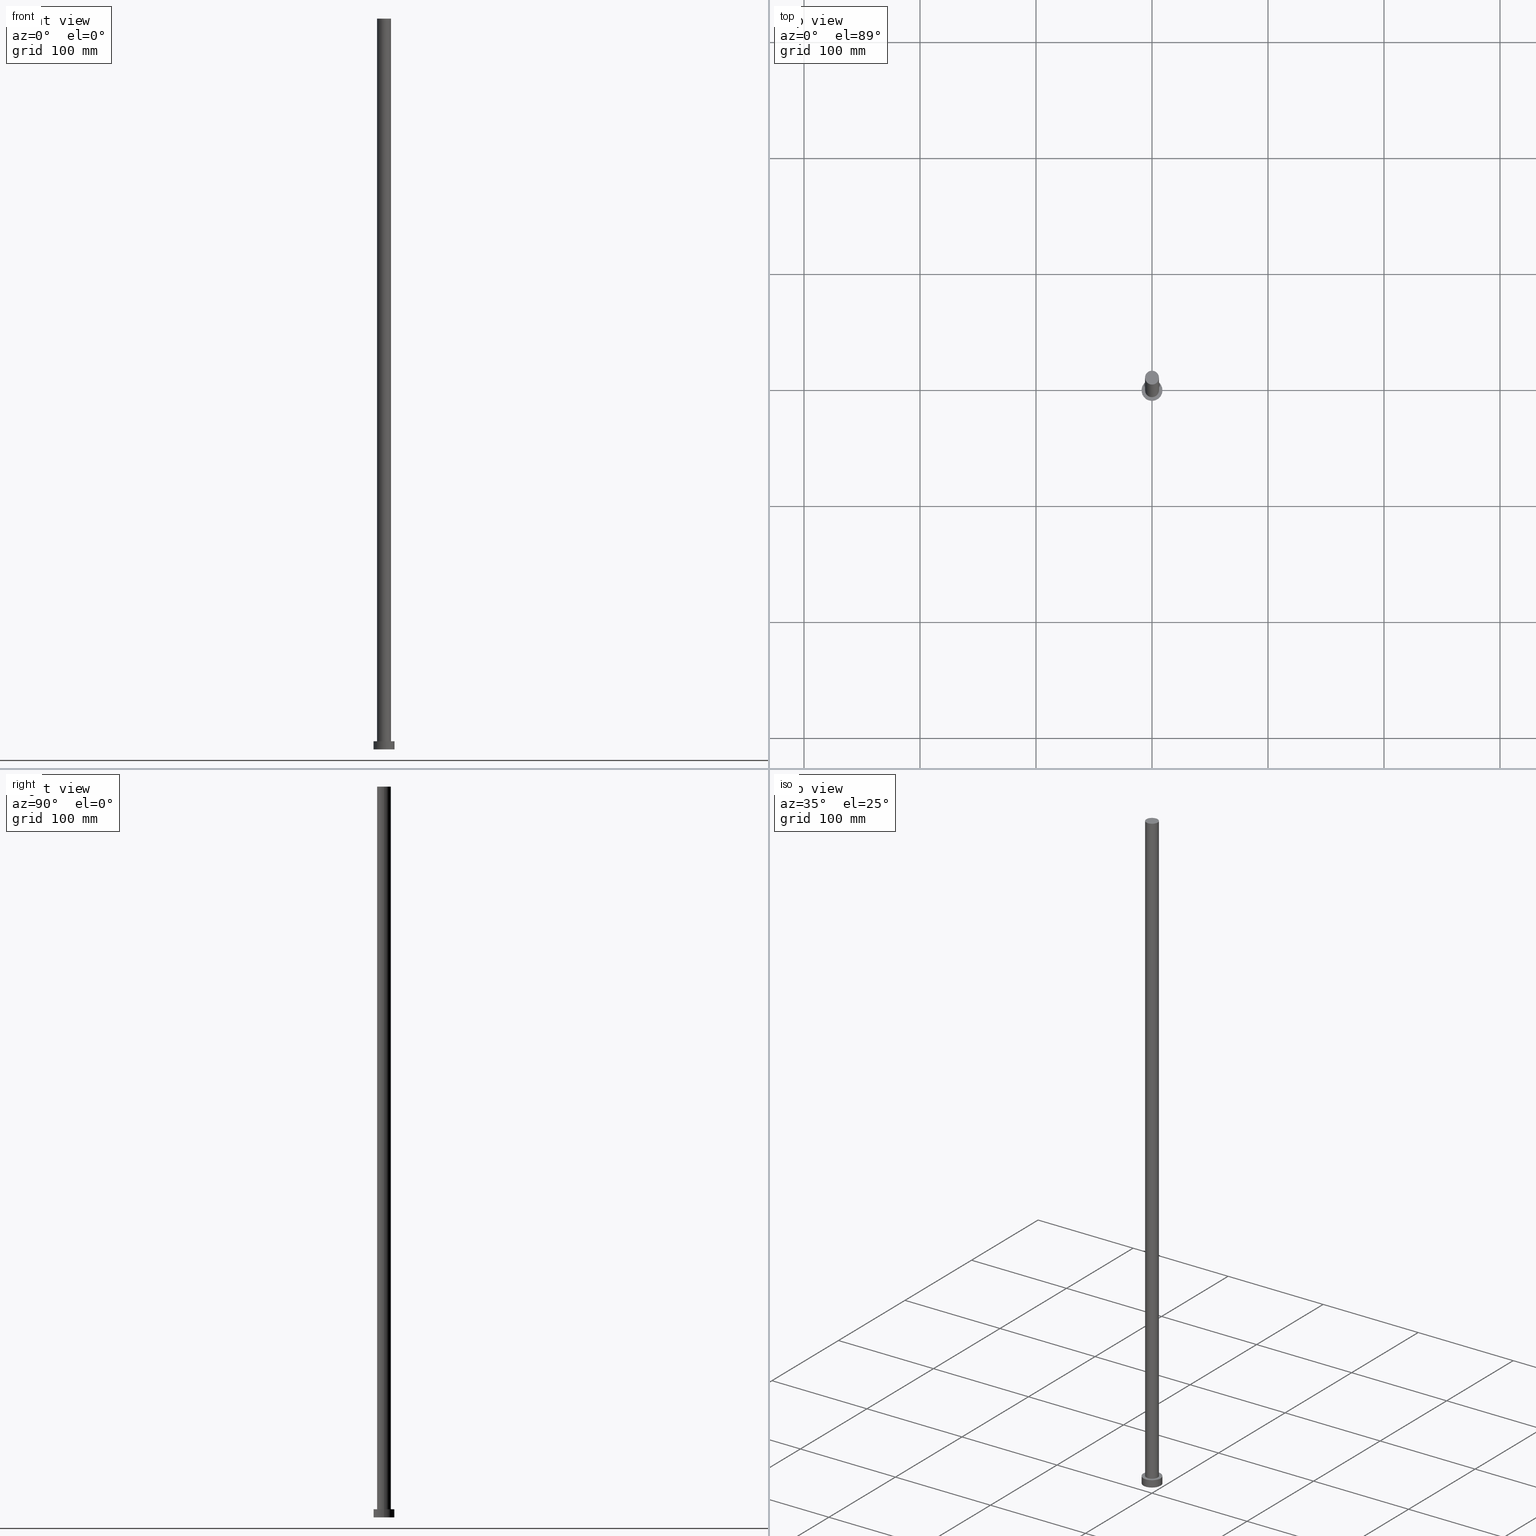
[diagram: canonical four-view strip — front | top / right | iso, engineering-drawing reading convention]
A machine part, canonical four-view strip (front | top / right | iso — engineering-drawing reading convention). The complete STEP part file that produces these views, byte-faithful:
ISO-10303-21;
HEADER;
FILE_DESCRIPTION (( 'STEP AP203' ),
    '1' );
FILE_NAME ('9933.STEP',
    '2026-02-06T12:37:04',
    ( '' ),
    ( '' ),
    'SwSTEP 2.0',
    'SolidWorks 2019',
    '' );
FILE_SCHEMA (( 'CONFIG_CONTROL_DESIGN' ));
ENDSEC;

DATA;
#1 = APPROVAL_PERSON_ORGANIZATION ( #162, #89, #93 ) ;
#2 = APPLICATION_CONTEXT ( 'configuration controlled 3d designs of mechanical parts and assemblies' ) ;
#3 = EDGE_LOOP ( 'NONE', ( #160, #141, #60, #181 ) ) ;
#4 = APPLICATION_PROTOCOL_DEFINITION ( 'international standard', 'config_control_design', 1994, #2 ) ;
#5 = ORIENTED_EDGE ( 'NONE', *, *, #180, .F. ) ;
#6 = CC_DESIGN_PERSON_AND_ORGANIZATION_ASSIGNMENT ( #65, #140, ( #111 ) ) ;
#7 = CARTESIAN_POINT ( 'NONE',  ( 9.000000000000000000, 1.102182119232617714E-15, 7.000000000000000000 ) ) ;
#8 = FACE_OUTER_BOUND ( 'NONE', #139, .T. ) ;
#9 = COORDINATED_UNIVERSAL_TIME_OFFSET ( 1, 0, .AHEAD. ) ;
#10 = FACE_OUTER_BOUND ( 'NONE', #219, .T. ) ;
#11 = CALENDAR_DATE ( 2026, 6, 2 ) ;
#12 = DIRECTION ( 'NONE',  ( 0.000000000000000000, 0.000000000000000000, 1.000000000000000000 ) ) ;
#13 = FACE_BOUND ( 'NONE', #107, .T. ) ;
#14 = PRODUCT_DEFINITION_SHAPE ( 'NONE', 'NONE',  #224 ) ;
#15 = DIRECTION ( 'NONE',  ( 1.000000000000000000, 0.000000000000000000, -0.000000000000000000 ) ) ;
#16 = MECHANICAL_CONTEXT ( 'NONE', #90, 'mechanical' ) ;
#17 = CC_DESIGN_APPROVAL ( #48, ( #74 ) ) ;
#18 = PLANE ( 'NONE',  #251 ) ;
#19 = ADVANCED_FACE ( 'NONE', ( #8 ), #64, .T. ) ;
#20 = DIRECTION ( 'NONE',  ( 1.000000000000000000, 0.000000000000000000, 0.000000000000000000 ) ) ;
#21 = CARTESIAN_POINT ( 'NONE',  ( 6.000000000000000888, 7.347880794884120722E-16, 7.000000000000000000 ) ) ;
#22 = VECTOR ( 'NONE', #57, 1000.000000000000000 ) ;
#23 = VERTEX_POINT ( 'NONE', #250 ) ;
#24 = LOCAL_TIME ( 13, 37, 4.000000000000000000, #9 ) ;
#25 = CIRCLE ( 'NONE', #35, 6.000000000000000888 ) ;
#26 = EDGE_CURVE ( 'NONE', #88, #222, #193, .T. ) ;
#27 = DATE_TIME_ROLE ( 'classification_date' ) ;
#28 = DATE_AND_TIME ( #46, #185 ) ;
#29 = ORIENTED_EDGE ( 'NONE', *, *, #199, .F. ) ;
#30 = EDGE_CURVE ( 'NONE', #83, #88, #25, .T. ) ;
#31 = CARTESIAN_POINT ( 'NONE',  ( 9.000000000000000000, 1.102182119232617714E-15, 0.000000000000000000 ) ) ;
#32 = CARTESIAN_POINT ( 'NONE',  ( 0.000000000000000000, 0.000000000000000000, 0.000000000000000000 ) ) ;
#33 = ORIENTED_EDGE ( 'NONE', *, *, #208, .F. ) ;
#34 = PERSON_AND_ORGANIZATION ( #170, #149 ) ;
#35 = AXIS2_PLACEMENT_3D ( 'NONE', #244, #210, #131 ) ;
#36 = ADVANCED_FACE ( 'NONE', ( #40 ), #129, .T. ) ;
#37 = FACE_OUTER_BOUND ( 'NONE', #121, .T. ) ;
#38 = SHAPE_DEFINITION_REPRESENTATION ( #14, #226 ) ;
#39 = DIRECTION ( 'NONE',  ( 1.000000000000000000, 0.000000000000000000, -0.000000000000000000 ) ) ;
#40 = FACE_OUTER_BOUND ( 'NONE', #3, .T. ) ;
#41 = LOCAL_TIME ( 13, 37, 4.000000000000000000, #120 ) ;
#42 = CIRCLE ( 'NONE', #110, 9.000000000000000000 ) ;
#43 = ADVANCED_FACE ( 'NONE', ( #69 ), #18, .F. ) ;
#44 = CIRCLE ( 'NONE', #184, 9.000000000000000000 ) ;
#45 = ORIENTED_EDGE ( 'NONE', *, *, #241, .T. ) ;
#46 = CALENDAR_DATE ( 2026, 6, 2 ) ;
#47 = ORIENTED_EDGE ( 'NONE', *, *, #234, .F. ) ;
#48 = APPROVAL ( #145, 'NEUR�EN�' ) ;
#49 = LINE ( 'NONE', #7, #125 ) ;
#50 = ORIENTED_EDGE ( 'NONE', *, *, #161, .T. ) ;
#51 = DIRECTION ( 'NONE',  ( -1.000000000000000000, 0.000000000000000000, 0.000000000000000000 ) ) ;
#52 = AXIS2_PLACEMENT_3D ( 'NONE', #237, #59, #138 ) ;
#53 = APPROVAL_DATE_TIME ( #225, #89 ) ;
#54 = ADVANCED_FACE ( 'NONE', ( #126 ), #227, .T. ) ;
#55 = DIRECTION ( 'NONE',  ( 0.000000000000000000, 0.000000000000000000, 1.000000000000000000 ) ) ;
#56 = DIRECTION ( 'NONE',  ( 0.000000000000000000, 0.000000000000000000, 1.000000000000000000 ) ) ;
#57 = DIRECTION ( 'NONE',  ( -0.000000000000000000, -0.000000000000000000, -1.000000000000000000 ) ) ;
#58 = ORIENTED_EDGE ( 'NONE', *, *, #26, .T. ) ;
#59 = DIRECTION ( 'NONE',  ( 0.000000000000000000, 0.000000000000000000, 1.000000000000000000 ) ) ;
#60 = ORIENTED_EDGE ( 'NONE', *, *, #234, .T. ) ;
#61 = ADVANCED_FACE ( 'NONE', ( #13, #37 ), #232, .T. ) ;
#62 = ORIENTED_EDGE ( 'NONE', *, *, #199, .T. ) ;
#63 = DIRECTION ( 'NONE',  ( 0.000000000000000000, 0.000000000000000000, 1.000000000000000000 ) ) ;
#64 = CYLINDRICAL_SURFACE ( 'NONE', #230, 9.000000000000000000 ) ;
#65 = PERSON_AND_ORGANIZATION ( #170, #149 ) ;
#66 = AXIS2_PLACEMENT_3D ( 'NONE', #252, #174, #97 ) ;
#67 = CC_DESIGN_DATE_AND_TIME_ASSIGNMENT ( #84, #27, ( #179 ) ) ;
#68 = CALENDAR_DATE ( 2026, 6, 2 ) ;
#69 = FACE_OUTER_BOUND ( 'NONE', #154, .T. ) ;
#70 = PLANE ( 'NONE',  #240 ) ;
#71 = PERSON_AND_ORGANIZATION_ROLE ( 'creator' ) ;
#72 = CYLINDRICAL_SURFACE ( 'NONE', #202, 6.000000000000000888 ) ;
#73 = DIRECTION ( 'NONE',  ( 0.000000000000000000, 0.000000000000000000, 1.000000000000000000 ) ) ;
#74 = PRODUCT_DEFINITION_FORMATION_WITH_SPECIFIED_SOURCE ( 'LIBOVOLN�', '', #111, .NOT_KNOWN. ) ;
#75 = AXIS2_PLACEMENT_3D ( 'NONE', #99, #56, #172 ) ;
#76 = DIRECTION ( 'NONE',  ( 1.000000000000000000, 0.000000000000000000, 0.000000000000000000 ) ) ;
#77 = ORIENTED_EDGE ( 'NONE', *, *, #100, .F. ) ;
#78 = CARTESIAN_POINT ( 'NONE',  ( 9.000000000000000000, 1.102182119232617714E-15, 7.000000000000000000 ) ) ;
#79 = ORIENTED_EDGE ( 'NONE', *, *, #147, .T. ) ;
#80 = CC_DESIGN_APPROVAL ( #169, ( #224 ) ) ;
#81 = AXIS2_PLACEMENT_3D ( 'NONE', #104, #146, #167 ) ;
#82 = DIRECTION ( 'NONE',  ( -0.000000000000000000, -0.000000000000000000, -1.000000000000000000 ) ) ;
#83 = VERTEX_POINT ( 'NONE', #213 ) ;
#84 = DATE_AND_TIME ( #159, #114 ) ;
#85 = APPROVAL_STATUS ( 'not_yet_approved' ) ;
#86 = DIRECTION ( 'NONE',  ( 0.000000000000000000, 0.000000000000000000, 1.000000000000000000 ) ) ;
#87 = DATE_AND_TIME ( #197, #41 ) ;
#88 = VERTEX_POINT ( 'NONE', #191 ) ;
#89 = APPROVAL ( #209, 'NEUR�EN�' ) ;
#90 = APPLICATION_CONTEXT ( 'configuration controlled 3d designs of mechanical parts and assemblies' ) ;
#91 =( NAMED_UNIT ( * ) PLANE_ANGLE_UNIT ( ) SI_UNIT ( $, .RADIAN. ) );
#92 = ADVANCED_FACE ( 'NONE', ( #10 ), #70, .T. ) ;
#93 = APPROVAL_ROLE ( '' ) ;
#94 = CARTESIAN_POINT ( 'NONE',  ( 0.000000000000000000, 0.000000000000000000, 630.0000000000000000 ) ) ;
#95 = DATE_TIME_ROLE ( 'creation_date' ) ;
#96 = APPLICATION_PROTOCOL_DEFINITION ( 'international standard', 'config_control_design', 1994, #90 ) ;
#97 = DIRECTION ( 'NONE',  ( -1.000000000000000000, 0.000000000000000000, 0.000000000000000000 ) ) ;
#98 = PERSON_AND_ORGANIZATION_ROLE ( 'creator' ) ;
#99 = CARTESIAN_POINT ( 'NONE',  ( 0.000000000000000000, 0.000000000000000000, 7.000000000000000000 ) ) ;
#100 = EDGE_CURVE ( 'NONE', #23, #176, #166, .T. ) ;
#101 = VECTOR ( 'NONE', #247, 1000.000000000000000 ) ;
#102 = DIRECTION ( 'NONE',  ( 1.000000000000000000, 0.000000000000000000, 0.000000000000000000 ) ) ;
#103 = APPROVAL_DATE_TIME ( #28, #169 ) ;
#104 = CARTESIAN_POINT ( 'NONE',  ( 0.000000000000000000, 0.000000000000000000, 7.000000000000000000 ) ) ;
#105 = EDGE_LOOP ( 'NONE', ( #33, #77, #165, #50 ) ) ;
#106 = ORIENTED_EDGE ( 'NONE', *, *, #161, .F. ) ;
#107 = EDGE_LOOP ( 'NONE', ( #195, #47 ) ) ;
#108 =( GEOMETRIC_REPRESENTATION_CONTEXT ( 3 ) GLOBAL_UNCERTAINTY_ASSIGNED_CONTEXT ( ( #214 ) ) GLOBAL_UNIT_ASSIGNED_CONTEXT ( ( #228, #91, #242 ) ) REPRESENTATION_CONTEXT ( 'NONE', 'WORKASPACE' ) );
#109 = CIRCLE ( 'NONE', #243, 6.000000000000000888 ) ;
#110 = AXIS2_PLACEMENT_3D ( 'NONE', #133, #216, #153 ) ;
#111 = PRODUCT ( '9933', '9933', '', ( #16 ) ) ;
#112 = PERSON_AND_ORGANIZATION_ROLE ( 'classification_officer' ) ;
#113 = DIRECTION ( 'NONE',  ( -1.000000000000000000, 0.000000000000000000, 0.000000000000000000 ) ) ;
#114 = LOCAL_TIME ( 13, 37, 4.000000000000000000, #119 ) ;
#115 = CARTESIAN_POINT ( 'NONE',  ( 0.000000000000000000, 0.000000000000000000, 0.000000000000000000 ) ) ;
#116 = DESIGN_CONTEXT ( 'detailed design', #2, 'design' ) ;
#117 = CC_DESIGN_PERSON_AND_ORGANIZATION_ASSIGNMENT ( #212, #112, ( #179 ) ) ;
#118 = ORIENTED_EDGE ( 'NONE', *, *, #208, .T. ) ;
#119 = COORDINATED_UNIVERSAL_TIME_OFFSET ( 1, 0, .AHEAD. ) ;
#120 = COORDINATED_UNIVERSAL_TIME_OFFSET ( 1, 0, .AHEAD. ) ;
#121 = EDGE_LOOP ( 'NONE', ( #123, #79 ) ) ;
#122 = APPROVAL_ROLE ( '' ) ;
#123 = ORIENTED_EDGE ( 'NONE', *, *, #100, .T. ) ;
#124 = ADVANCED_FACE ( 'NONE', ( #249 ), #72, .T. ) ;
#125 = VECTOR ( 'NONE', #82, 1000.000000000000000 ) ;
#126 = FACE_OUTER_BOUND ( 'NONE', #105, .T. ) ;
#127 = AXIS2_PLACEMENT_3D ( 'NONE', #235, #137, #76 ) ;
#128 = CC_DESIGN_PERSON_AND_ORGANIZATION_ASSIGNMENT ( #34, #98, ( #224 ) ) ;
#129 = CYLINDRICAL_SURFACE ( 'NONE', #150, 6.000000000000000888 ) ;
#130 = SECURITY_CLASSIFICATION_LEVEL ( 'unclassified' ) ;
#131 = DIRECTION ( 'NONE',  ( 1.000000000000000000, 0.000000000000000000, 0.000000000000000000 ) ) ;
#132 = CARTESIAN_POINT ( 'NONE',  ( 0.000000000000000000, 0.000000000000000000, 630.0000000000000000 ) ) ;
#133 = CARTESIAN_POINT ( 'NONE',  ( 0.000000000000000000, 0.000000000000000000, 0.000000000000000000 ) ) ;
#134 = CC_DESIGN_DATE_AND_TIME_ASSIGNMENT ( #189, #95, ( #224 ) ) ;
#135 = CIRCLE ( 'NONE', #52, 6.000000000000000888 ) ;
#136 = CARTESIAN_POINT ( 'NONE',  ( 6.000000000000000888, 7.347880794884120722E-16, 630.0000000000000000 ) ) ;
#137 = DIRECTION ( 'NONE',  ( 0.000000000000000000, 0.000000000000000000, 1.000000000000000000 ) ) ;
#138 = DIRECTION ( 'NONE',  ( 1.000000000000000000, 0.000000000000000000, 0.000000000000000000 ) ) ;
#139 = EDGE_LOOP ( 'NONE', ( #163, #118, #206, #205 ) ) ;
#140 = PERSON_AND_ORGANIZATION_ROLE ( 'design_owner' ) ;
#141 = ORIENTED_EDGE ( 'NONE', *, *, #152, .T. ) ;
#142 = CARTESIAN_POINT ( 'NONE',  ( 0.000000000000000000, 0.000000000000000000, 7.000000000000000000 ) ) ;
#143 = LOCAL_TIME ( 13, 37, 4.000000000000000000, #190 ) ;
#144 = DIRECTION ( 'NONE',  ( -1.000000000000000000, 0.000000000000000000, 0.000000000000000000 ) ) ;
#145 = APPROVAL_STATUS ( 'not_yet_approved' ) ;
#146 = DIRECTION ( 'NONE',  ( 0.000000000000000000, 0.000000000000000000, 1.000000000000000000 ) ) ;
#147 = EDGE_CURVE ( 'NONE', #176, #23, #233, .T. ) ;
#148 = CARTESIAN_POINT ( 'NONE',  ( 0.000000000000000000, 0.000000000000000000, 0.000000000000000000 ) ) ;
#149 = ORGANIZATION ( 'NEUR�EN�', 'NEUR�EN�', '' ) ;
#150 = AXIS2_PLACEMENT_3D ( 'NONE', #94, #168, #144 ) ;
#151 = CARTESIAN_POINT ( 'NONE',  ( -6.000000000000000888, 0.000000000000000000, 630.0000000000000000 ) ) ;
#152 = EDGE_CURVE ( 'NONE', #83, #156, #254, .T. ) ;
#153 = DIRECTION ( 'NONE',  ( 1.000000000000000000, 0.000000000000000000, 0.000000000000000000 ) ) ;
#154 = EDGE_LOOP ( 'NONE', ( #106, #5 ) ) ;
#155 = CARTESIAN_POINT ( 'NONE',  ( -9.000000000000000000, 0.000000000000000000, 7.000000000000000000 ) ) ;
#156 = VERTEX_POINT ( 'NONE', #21 ) ;
#157 = CARTESIAN_POINT ( 'NONE',  ( -6.000000000000000888, 0.000000000000000000, 7.000000000000000000 ) ) ;
#158 = PERSON_AND_ORGANIZATION ( #170, #149 ) ;
#159 = CALENDAR_DATE ( 2026, 6, 2 ) ;
#160 = ORIENTED_EDGE ( 'NONE', *, *, #30, .F. ) ;
#161 = EDGE_CURVE ( 'NONE', #196, #183, #42, .T. ) ;
#162 = PERSON_AND_ORGANIZATION ( #170, #149 ) ;
#163 = ORIENTED_EDGE ( 'NONE', *, *, #147, .F. ) ;
#164 = AXIS2_PLACEMENT_3D ( 'NONE', #115, #12, #20 ) ;
#165 = ORIENTED_EDGE ( 'NONE', *, *, #177, .T. ) ;
#166 = CIRCLE ( 'NONE', #75, 9.000000000000000000 ) ;
#167 = DIRECTION ( 'NONE',  ( 1.000000000000000000, 0.000000000000000000, 0.000000000000000000 ) ) ;
#168 = DIRECTION ( 'NONE',  ( -0.000000000000000000, -0.000000000000000000, -1.000000000000000000 ) ) ;
#169 = APPROVAL ( #85, 'NEUR�EN�' ) ;
#170 = PERSON ( 'NEUR�EN�', 'NEUR�EN�', 'NEUR�EN�', ('NEUR�EN�'), ('NEUR�EN�'), ('NEUR�EN�') ) ;
#171 = CARTESIAN_POINT ( 'NONE',  ( 0.000000000000000000, 0.000000000000000000, 7.000000000000000000 ) ) ;
#172 = DIRECTION ( 'NONE',  ( 1.000000000000000000, 0.000000000000000000, 0.000000000000000000 ) ) ;
#173 = APPROVAL_PERSON_ORGANIZATION ( #245, #48, #122 ) ;
#174 = DIRECTION ( 'NONE',  ( -0.000000000000000000, -0.000000000000000000, -1.000000000000000000 ) ) ;
#175 = APPROVAL_PERSON_ORGANIZATION ( #203, #169, #238 ) ;
#176 = VERTEX_POINT ( 'NONE', #78 ) ;
#177 = EDGE_CURVE ( 'NONE', #23, #196, #217, .T. ) ;
#178 = APPROVAL_DATE_TIME ( #87, #48 ) ;
#179 = SECURITY_CLASSIFICATION ( '', '', #130 ) ;
#180 = EDGE_CURVE ( 'NONE', #183, #196, #44, .T. ) ;
#181 = ORIENTED_EDGE ( 'NONE', *, *, #26, .F. ) ;
#182 = CARTESIAN_POINT ( 'NONE',  ( 0.000000000000000000, 0.000000000000000000, 630.0000000000000000 ) ) ;
#183 = VERTEX_POINT ( 'NONE', #31 ) ;
#184 = AXIS2_PLACEMENT_3D ( 'NONE', #32, #63, #200 ) ;
#185 = LOCAL_TIME ( 13, 37, 4.000000000000000000, #220 ) ;
#186 = PRODUCT_RELATED_PRODUCT_CATEGORY ( 'detail', '', ( #111 ) ) ;
#187 = DIRECTION ( 'NONE',  ( 1.000000000000000000, 0.000000000000000000, -0.000000000000000000 ) ) ;
#188 = AXIS2_PLACEMENT_3D ( 'NONE', #171, #73, #39 ) ;
#189 = DATE_AND_TIME ( #68, #24 ) ;
#190 = COORDINATED_UNIVERSAL_TIME_OFFSET ( 1, 0, .AHEAD. ) ;
#191 = CARTESIAN_POINT ( 'NONE',  ( -6.000000000000000888, 0.000000000000000000, 630.0000000000000000 ) ) ;
#192 = DIRECTION ( 'NONE',  ( -0.000000000000000000, -0.000000000000000000, -1.000000000000000000 ) ) ;
#193 = LINE ( 'NONE', #151, #101 ) ;
#194 = CIRCLE ( 'NONE', #81, 6.000000000000000888 ) ;
#195 = ORIENTED_EDGE ( 'NONE', *, *, #241, .F. ) ;
#196 = VERTEX_POINT ( 'NONE', #239 ) ;
#197 = CALENDAR_DATE ( 2026, 6, 2 ) ;
#198 = MANIFOLD_SOLID_BREP ( 'P�idat vysunut�m3', #207 ) ;
#199 = EDGE_CURVE ( 'NONE', #88, #83, #109, .T. ) ;
#200 = DIRECTION ( 'NONE',  ( 1.000000000000000000, 0.000000000000000000, 0.000000000000000000 ) ) ;
#201 = CC_DESIGN_SECURITY_CLASSIFICATION ( #179, ( #74 ) ) ;
#202 = AXIS2_PLACEMENT_3D ( 'NONE', #132, #192, #113 ) ;
#203 = PERSON_AND_ORGANIZATION ( #170, #149 ) ;
#204 = ORIENTED_EDGE ( 'NONE', *, *, #152, .F. ) ;
#205 = ORIENTED_EDGE ( 'NONE', *, *, #177, .F. ) ;
#206 = ORIENTED_EDGE ( 'NONE', *, *, #180, .T. ) ;
#207 = CLOSED_SHELL ( 'NONE', ( #36, #19, #54, #61, #43, #124, #92 ) ) ;
#208 = EDGE_CURVE ( 'NONE', #176, #183, #49, .T. ) ;
#209 = APPROVAL_STATUS ( 'not_yet_approved' ) ;
#210 = DIRECTION ( 'NONE',  ( 0.000000000000000000, 0.000000000000000000, 1.000000000000000000 ) ) ;
#211 = DIRECTION ( 'NONE',  ( 0.000000000000000000, 0.000000000000000000, 1.000000000000000000 ) ) ;
#212 = PERSON_AND_ORGANIZATION ( #170, #149 ) ;
#213 = CARTESIAN_POINT ( 'NONE',  ( 6.000000000000000888, 7.347880794884120722E-16, 630.0000000000000000 ) ) ;
#214 = UNCERTAINTY_MEASURE_WITH_UNIT (LENGTH_MEASURE( 1.000000000000000082E-05 ), #228, 'distance_accuracy_value', 'NONE');
#215 = CC_DESIGN_APPROVAL ( #89, ( #179 ) ) ;
#216 = DIRECTION ( 'NONE',  ( 0.000000000000000000, 0.000000000000000000, 1.000000000000000000 ) ) ;
#217 = LINE ( 'NONE', #155, #22 ) ;
#218 = DIRECTION ( 'NONE',  ( -0.000000000000000000, -0.000000000000000000, -1.000000000000000000 ) ) ;
#219 = EDGE_LOOP ( 'NONE', ( #62, #255 ) ) ;
#220 = COORDINATED_UNIVERSAL_TIME_OFFSET ( 1, 0, .AHEAD. ) ;
#221 = VECTOR ( 'NONE', #218, 1000.000000000000000 ) ;
#222 = VERTEX_POINT ( 'NONE', #157 ) ;
#223 = DIRECTION ( 'NONE',  ( -0.000000000000000000, -0.000000000000000000, -1.000000000000000000 ) ) ;
#224 = PRODUCT_DEFINITION ( 'NEZN�M�', '', #74, #116 ) ;
#225 = DATE_AND_TIME ( #11, #143 ) ;
#226 = ADVANCED_BREP_SHAPE_REPRESENTATION ( '9933', ( #198, #164 ), #108 ) ;
#227 = CYLINDRICAL_SURFACE ( 'NONE', #66, 9.000000000000000000 ) ;
#228 =( LENGTH_UNIT ( ) NAMED_UNIT ( * ) SI_UNIT ( .MILLI., .METRE. ) );
#229 = CARTESIAN_POINT ( 'NONE',  ( 0.000000000000000000, 0.000000000000000000, 630.0000000000000000 ) ) ;
#230 = AXIS2_PLACEMENT_3D ( 'NONE', #142, #223, #51 ) ;
#231 = PERSON_AND_ORGANIZATION ( #170, #149 ) ;
#232 = PLANE ( 'NONE',  #188 ) ;
#233 = CIRCLE ( 'NONE', #127, 9.000000000000000000 ) ;
#234 = EDGE_CURVE ( 'NONE', #156, #222, #135, .T. ) ;
#235 = CARTESIAN_POINT ( 'NONE',  ( 0.000000000000000000, 0.000000000000000000, 7.000000000000000000 ) ) ;
#236 = EDGE_LOOP ( 'NONE', ( #204, #29, #58, #45 ) ) ;
#237 = CARTESIAN_POINT ( 'NONE',  ( 0.000000000000000000, 0.000000000000000000, 7.000000000000000000 ) ) ;
#238 = APPROVAL_ROLE ( '' ) ;
#239 = CARTESIAN_POINT ( 'NONE',  ( -9.000000000000000000, 0.000000000000000000, 0.000000000000000000 ) ) ;
#240 = AXIS2_PLACEMENT_3D ( 'NONE', #229, #55, #15 ) ;
#241 = EDGE_CURVE ( 'NONE', #222, #156, #194, .T. ) ;
#242 =( NAMED_UNIT ( * ) SI_UNIT ( $, .STERADIAN. ) SOLID_ANGLE_UNIT ( ) );
#243 = AXIS2_PLACEMENT_3D ( 'NONE', #182, #86, #102 ) ;
#244 = CARTESIAN_POINT ( 'NONE',  ( 0.000000000000000000, 0.000000000000000000, 630.0000000000000000 ) ) ;
#245 = PERSON_AND_ORGANIZATION ( #170, #149 ) ;
#246 = PERSON_AND_ORGANIZATION_ROLE ( 'design_supplier' ) ;
#247 = DIRECTION ( 'NONE',  ( -0.000000000000000000, -0.000000000000000000, -1.000000000000000000 ) ) ;
#248 = CC_DESIGN_PERSON_AND_ORGANIZATION_ASSIGNMENT ( #158, #71, ( #74 ) ) ;
#249 = FACE_OUTER_BOUND ( 'NONE', #236, .T. ) ;
#250 = CARTESIAN_POINT ( 'NONE',  ( -9.000000000000000000, 0.000000000000000000, 7.000000000000000000 ) ) ;
#251 = AXIS2_PLACEMENT_3D ( 'NONE', #148, #211, #187 ) ;
#252 = CARTESIAN_POINT ( 'NONE',  ( 0.000000000000000000, 0.000000000000000000, 7.000000000000000000 ) ) ;
#253 = CC_DESIGN_PERSON_AND_ORGANIZATION_ASSIGNMENT ( #231, #246, ( #74 ) ) ;
#254 = LINE ( 'NONE', #136, #221 ) ;
#255 = ORIENTED_EDGE ( 'NONE', *, *, #30, .T. ) ;
ENDSEC;
END-ISO-10303-21;
